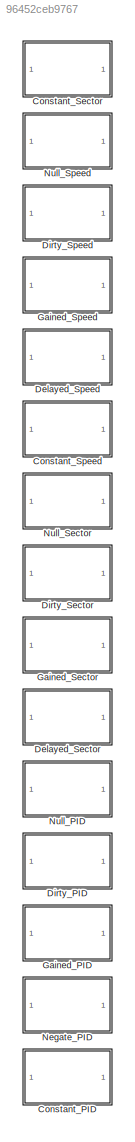
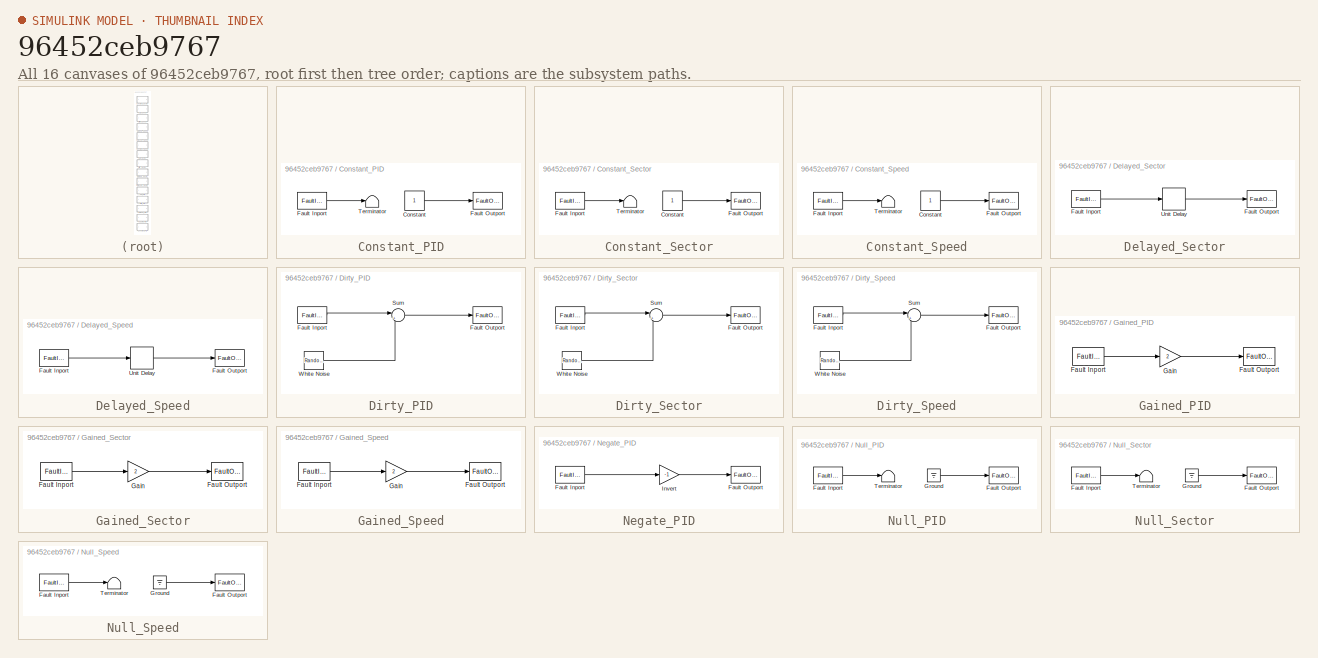
[diagram: thumbnail index - all 16 canvases of the model, root first then tree order]
MODEL slx_96452ceb9767
KIND model
CONFIG AbsTol = auto
CONFIG EnableMultiTasking = on
CONFIG FixedStep = auto
CONFIG MaxStep = auto
CONFIG MinStep = auto
CONFIG RelTol = 1e-3
CONFIG SampleTimeConstraint = Unconstrained
CONFIG SolverName = VariableStepAuto
CONFIG StartTime = 0.0
CONFIG StopTime = 35
WORKSPACE source: mxarray member
WORKSPACE encoderResolution = 2000
WORKSPACE hallOffset = '0.5'
WORKSPACE indexOffset = 850
WORKSPACE polePairs = '4'
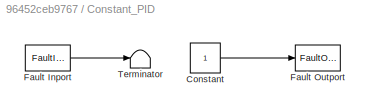
BLOCK [SubSystem] Constant_PID
  IsInjectorSS = on
  LibrarySourceBlock = mwfaultlib/Stuck-at-Constant
  PartitionName = PartitionFor_Constant_PID_4698_000977
  ScheduleAs = Aperiodic partition
  TreatAsAtomicUnit = on
BLOCK [Constant] Constant_PID/Constant
  SampleTime = -1
BLOCK [FaultInport] Constant_PID/Fault Inport
BLOCK [FaultOutport] Constant_PID/Fault Outport
BLOCK [Terminator] Constant_PID/Terminator
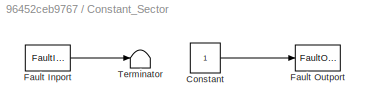
BLOCK [SubSystem] Constant_Sector
  IsInjectorSS = on
  LibrarySourceBlock = mwfaultlib/Stuck-at-Constant
  PartitionName = PartitionFor_Constant_Sector_1447_001221
  ScheduleAs = Aperiodic partition
  TreatAsAtomicUnit = on
BLOCK [Constant] Constant_Sector/Constant
  SampleTime = -1
BLOCK [FaultInport] Constant_Sector/Fault Inport
BLOCK [FaultOutport] Constant_Sector/Fault Outport
BLOCK [Terminator] Constant_Sector/Terminator
BLOCK [SubSystem] Constant_Speed
  IsInjectorSS = on
  LibrarySourceBlock = mwfaultlib/Stuck-at-Constant
  PartitionName = PartitionFor_Constant_Speed_1366_012451
  ScheduleAs = Aperiodic partition
  TreatAsAtomicUnit = on
BLOCK [Constant] Constant_Speed/Constant
  SampleTime = -1
BLOCK [FaultInport] Constant_Speed/Fault Inport
BLOCK [FaultOutport] Constant_Speed/Fault Outport
BLOCK [Terminator] Constant_Speed/Terminator
BLOCK [SubSystem] Delayed_Sector
  IsInjectorSS = on
  LibrarySourceBlock = mwfaultlib/Unit Delay
  PartitionName = PartitionFor_Delayed_Sector_4477_001099
  ScheduleAs = Aperiodic partition
  TreatAsAtomicUnit = on
BLOCK [FaultInport] Delayed_Sector/Fault Inport
BLOCK [FaultOutport] Delayed_Sector/Fault Outport
BLOCK [Delay] Delayed_Sector/Unit Delay
  DelayLength = 1
  InputPortMap = u0
BLOCK [SubSystem] Delayed_Speed
  IsInjectorSS = on
  LibrarySourceBlock = mwfaultlib/Unit Delay
  PartitionName = PartitionFor_Delayed_Speed_4718_000854
  ScheduleAs = Aperiodic partition
  TreatAsAtomicUnit = on
BLOCK [FaultInport] Delayed_Speed/Fault Inport
BLOCK [FaultOutport] Delayed_Speed/Fault Outport
BLOCK [Delay] Delayed_Speed/Unit Delay
  DelayLength = 1
  InputPortMap = u0
BLOCK [SubSystem] Dirty_PID
  IsInjectorSS = on
  LibrarySourceBlock = mwfaultlib/Add Noise
  PartitionName = PartitionFor_Dirty_PID_4657_000854
  ScheduleAs = Aperiodic partition
  TreatAsAtomicUnit = on
BLOCK [FaultInport] Dirty_PID/Fault Inport
BLOCK [FaultOutport] Dirty_PID/Fault Outport
BLOCK [Sum] Dirty_PID/Sum
  Inputs = |++
  OutDataTypeStr = Inherit: Inherit via back propagation
BLOCK [RandomNumber] Dirty_PID/White Noise
  DisableCoverage = on
  Seed = [23341]
BLOCK [SubSystem] Dirty_Sector
  IsInjectorSS = on
  LibrarySourceBlock = mwfaultlib/Add Noise
  PartitionName = PartitionFor_Dirty_Sector_4453_001221
  ScheduleAs = Aperiodic partition
  TreatAsAtomicUnit = on
BLOCK [FaultInport] Dirty_Sector/Fault Inport
BLOCK [FaultOutport] Dirty_Sector/Fault Outport
BLOCK [Sum] Dirty_Sector/Sum
  Inputs = |++
  OutDataTypeStr = Inherit: Inherit via back propagation
BLOCK [RandomNumber] Dirty_Sector/White Noise
  DisableCoverage = on
  Seed = [23341]
BLOCK [SubSystem] Dirty_Speed
  IsInjectorSS = on
  LibrarySourceBlock = mwfaultlib/Add Noise
  PartitionName = PartitionFor_Dirty_Speed_7587_001343
  ScheduleAs = Aperiodic partition
  TreatAsAtomicUnit = on
BLOCK [FaultInport] Dirty_Speed/Fault Inport
BLOCK [FaultOutport] Dirty_Speed/Fault Outport
BLOCK [Sum] Dirty_Speed/Sum
  Inputs = |++
  OutDataTypeStr = Inherit: Inherit via back propagation
BLOCK [RandomNumber] Dirty_Speed/White Noise
  DisableCoverage = on
  Seed = [23341]
BLOCK [SubSystem] Gained_PID
  IsInjectorSS = on
  LibrarySourceBlock = mwfaultlib/Gain
  PartitionName = PartitionFor_Gained_PID_4671_001221
  ScheduleAs = Aperiodic partition
  TreatAsAtomicUnit = on
BLOCK [FaultInport] Gained_PID/Fault Inport
BLOCK [FaultOutport] Gained_PID/Fault Outport
BLOCK [Gain] Gained_PID/Gain
  Gain = 2
  OutDataTypeStr = Inherit: Inherit via back propagation
BLOCK [SubSystem] Gained_Sector
  IsInjectorSS = on
  LibrarySourceBlock = mwfaultlib/Gain
  PartitionName = PartitionFor_Gained_Sector_4467_001099
  ScheduleAs = Aperiodic partition
  TreatAsAtomicUnit = on
BLOCK [FaultInport] Gained_Sector/Fault Inport
BLOCK [FaultOutport] Gained_Sector/Fault Outport
BLOCK [Gain] Gained_Sector/Gain
  Gain = 2
  OutDataTypeStr = Inherit: Inherit via back propagation
BLOCK [SubSystem] Gained_Speed
  IsInjectorSS = on
  LibrarySourceBlock = mwfaultlib/Gain
  PartitionName = PartitionFor_Gained_Speed_4708_000488
  ScheduleAs = Aperiodic partition
  TreatAsAtomicUnit = on
BLOCK [FaultInport] Gained_Speed/Fault Inport
BLOCK [FaultOutport] Gained_Speed/Fault Outport
BLOCK [Gain] Gained_Speed/Gain
  Gain = 2
  OutDataTypeStr = Inherit: Inherit via back propagation
BLOCK [SubSystem] Negate_PID
  IsInjectorSS = on
  LibrarySourceBlock = mwfaultlib/Negate Value
  PartitionName = PartitionFor_Negate_PID_4687_000854
  ScheduleAs = Aperiodic partition
  TreatAsAtomicUnit = on
BLOCK [FaultInport] Negate_PID/Fault Inport
BLOCK [FaultOutport] Negate_PID/Fault Outport
BLOCK [Gain] Negate_PID/Invert
  Gain = -1
BLOCK [SubSystem] Null_PID
  IsInjectorSS = on
  LibrarySourceBlock = mwfaultlib/Stuck-at-Ground
  PartitionName = PartitionFor_Null_PID_9236_000610
  ScheduleAs = Aperiodic partition
  TreatAsAtomicUnit = on
BLOCK [FaultInport] Null_PID/Fault Inport
BLOCK [FaultOutport] Null_PID/Fault Outport
BLOCK [Ground] Null_PID/Ground
BLOCK [Terminator] Null_PID/Terminator
BLOCK [SubSystem] Null_Sector
  IsInjectorSS = on
  LibrarySourceBlock = mwfaultlib/Stuck-at-Ground
  PartitionName = PartitionFor_Null_Sector_4309_001343
  ScheduleAs = Aperiodic partition
  TreatAsAtomicUnit = on
BLOCK [FaultInport] Null_Sector/Fault Inport
BLOCK [FaultOutport] Null_Sector/Fault Outport
BLOCK [Ground] Null_Sector/Ground
BLOCK [Terminator] Null_Sector/Terminator
BLOCK [SubSystem] Null_Speed
  IsInjectorSS = on
  LibrarySourceBlock = mwfaultlib/Stuck-at-Ground
  TreatAsAtomicUnit = on
BLOCK [FaultInport] Null_Speed/Fault Inport
BLOCK [FaultOutport] Null_Speed/Fault Outport
BLOCK [Ground] Null_Speed/Ground
BLOCK [Terminator] Null_Speed/Terminator
LINE Constant_PID/Constant:1 -> Constant_PID/Fault Outport:1
LINE Constant_PID/Fault Inport:1 -> Constant_PID/Terminator:1
LINE Constant_Sector/Constant:1 -> Constant_Sector/Fault Outport:1
LINE Constant_Sector/Fault Inport:1 -> Constant_Sector/Terminator:1
LINE Constant_Speed/Constant:1 -> Constant_Speed/Fault Outport:1
LINE Constant_Speed/Fault Inport:1 -> Constant_Speed/Terminator:1
LINE Delayed_Sector/Fault Inport:1 -> Delayed_Sector/Unit Delay:1
LINE Delayed_Sector/Unit Delay:1 -> Delayed_Sector/Fault Outport:1
LINE Delayed_Speed/Fault Inport:1 -> Delayed_Speed/Unit Delay:1
LINE Delayed_Speed/Unit Delay:1 -> Delayed_Speed/Fault Outport:1
LINE Dirty_PID/Fault Inport:1 -> Dirty_PID/Sum:1
LINE Dirty_PID/Sum:1 -> Dirty_PID/Fault Outport:1
LINE Dirty_PID/White Noise:1 -> Dirty_PID/Sum:2
LINE Dirty_Sector/Fault Inport:1 -> Dirty_Sector/Sum:1
LINE Dirty_Sector/Sum:1 -> Dirty_Sector/Fault Outport:1
LINE Dirty_Sector/White Noise:1 -> Dirty_Sector/Sum:2
LINE Dirty_Speed/Fault Inport:1 -> Dirty_Speed/Sum:1
LINE Dirty_Speed/Sum:1 -> Dirty_Speed/Fault Outport:1
LINE Dirty_Speed/White Noise:1 -> Dirty_Speed/Sum:2
LINE Gained_PID/Fault Inport:1 -> Gained_PID/Gain:1
LINE Gained_PID/Gain:1 -> Gained_PID/Fault Outport:1
LINE Gained_Sector/Fault Inport:1 -> Gained_Sector/Gain:1
LINE Gained_Sector/Gain:1 -> Gained_Sector/Fault Outport:1
LINE Gained_Speed/Fault Inport:1 -> Gained_Speed/Gain:1
LINE Gained_Speed/Gain:1 -> Gained_Speed/Fault Outport:1
LINE Negate_PID/Fault Inport:1 -> Negate_PID/Invert:1
LINE Negate_PID/Invert:1 -> Negate_PID/Fault Outport:1
LINE Null_PID/Fault Inport:1 -> Null_PID/Terminator:1
LINE Null_PID/Ground:1 -> Null_PID/Fault Outport:1
LINE Null_Sector/Fault Inport:1 -> Null_Sector/Terminator:1
LINE Null_Sector/Ground:1 -> Null_Sector/Fault Outport:1
LINE Null_Speed/Fault Inport:1 -> Null_Speed/Terminator:1
LINE Null_Speed/Ground:1 -> Null_Speed/Fault Outport:1
